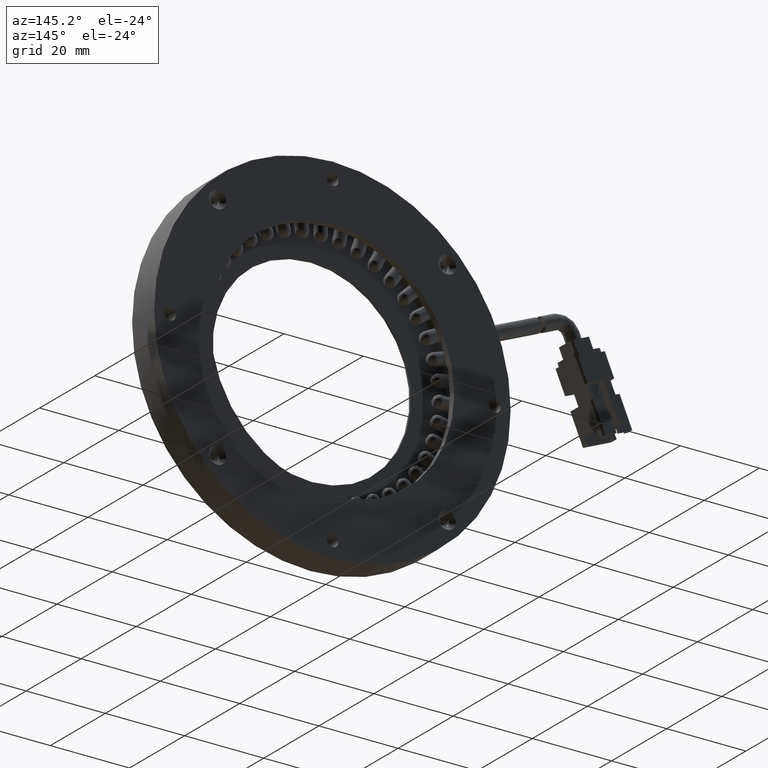
[diagram: clean part render]
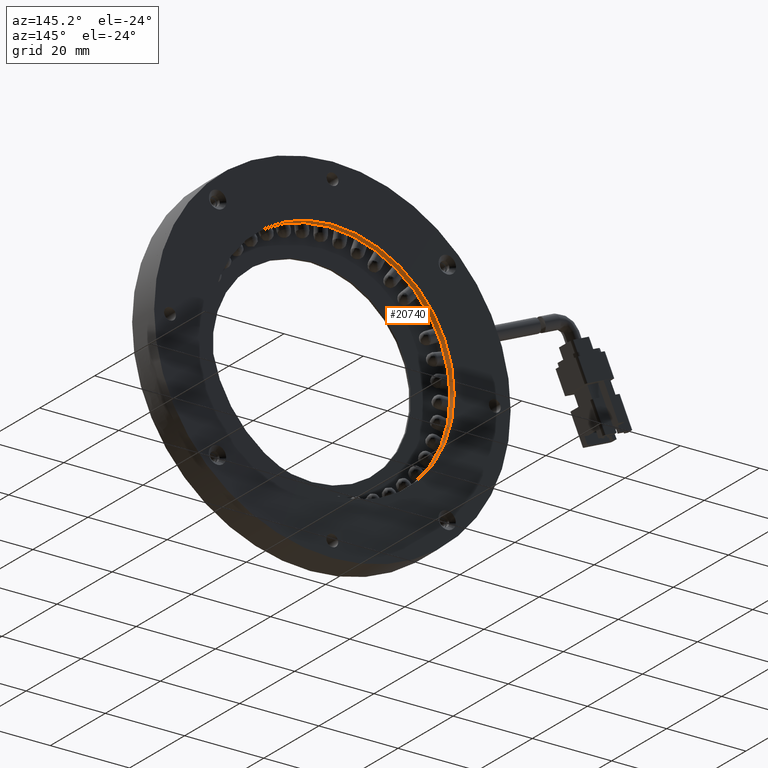
[diagram: same view with one face highlighted and labeled with its STEP entity id]
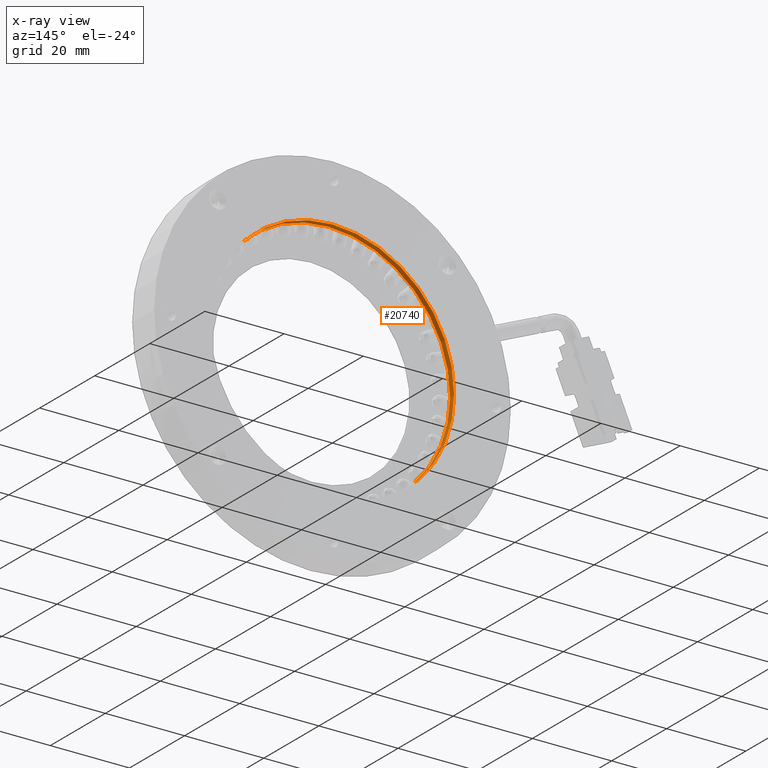
[diagram: x-ray of the same camera — body ghosted, the highlighted face saturated]
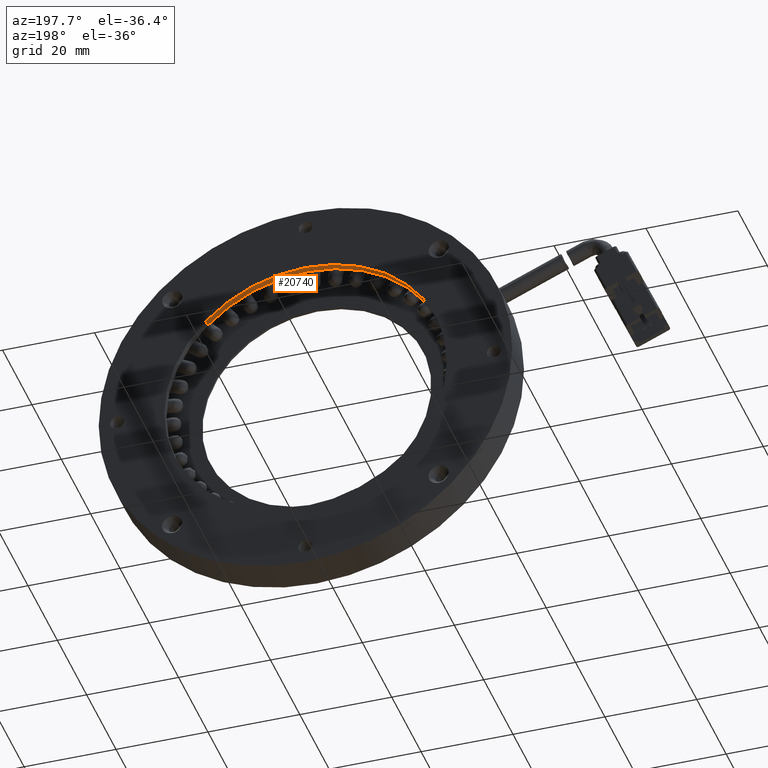
[diagram: same view with one face highlighted and labeled with its STEP entity id]
A machine part, auxiliary view. The second image highlights one B-rep face of the part: STEP entity #20740.
The next image is the same camera in x-ray: the body ghosted, the highlighted face saturated — about 0% of this face is hidden behind the body in this view.
A second angle (auxiliary view) of the same face is appended — the face is thin or edge-on in the first view.
In plain terms, the highlighted cylindrical surface (partial cylindrical patch) has radius 30.74 mm, axis along (-0, 1, -0).
Its self-contained STEP definition (entity closure, byte-faithful):
#408 = VERTEX_POINT ( 'NONE', #24577 ) ;
#1778 = FACE_OUTER_BOUND ( 'NONE', #18301, .T. ) ;
#2072 = EDGE_CURVE ( 'NONE', #27943, #31389, #22840, .T. ) ;
#3883 = EDGE_CURVE ( 'NONE', #38177, #408, #15187, .T. ) ;
#6061 = CARTESIAN_POINT ( 'NONE',  ( 25.28996387029088000, 6.123552123552125100, 21.75437483523881700 ) ) ;
#11577 = CARTESIAN_POINT ( 'NONE',  ( 3.571428571428565800, 7.623552123552121500, 0.0000000000000000000 ) ) ;
#12625 = ORIENTED_EDGE ( 'NONE', *, *, #35789, .T. ) ;
#12877 = CARTESIAN_POINT ( 'NONE',  ( -18.14710672743374400, 7.623552123552118000, -21.75437483523882100 ) ) ;
#14558 = CYLINDRICAL_SURFACE ( 'NONE', #30727, 30.74000000000000200 ) ;
#14762 = DIRECTION ( 'NONE',  ( 0.7065235946279216900, 1.128642469731169200E-016, 0.7076894871580616800 ) ) ;
#15132 = CARTESIAN_POINT ( 'NONE',  ( 3.571428571428565800, 6.123552123552121500, 0.0000000000000000000 ) ) ;
#15187 = LINE ( 'NONE', #23214, #39307 ) ;
#18301 = EDGE_LOOP ( 'NONE', ( #40769, #34462, #12625, #38337 ) ) ;
#18307 = DIRECTION ( 'NONE',  ( 0.7065235946279216900, 1.128642469731169200E-016, 0.7076894871580616800 ) ) ;
#20054 = AXIS2_PLACEMENT_3D ( 'NONE', #11577, #33630, #14762 ) ;
#20740 = ADVANCED_FACE ( 'NONE', ( #1778 ), #14558, .F. ) ;
#20943 = DIRECTION ( 'NONE',  ( -1.163897087407499700E-016, 1.000000000000000000, -2.939373556709199600E-017 ) ) ;
#21908 = CIRCLE ( 'NONE', #38463, 30.74000000000000200 ) ;
#22840 = LINE ( 'NONE', #12877, #31239 ) ;
#23214 = CARTESIAN_POINT ( 'NONE',  ( 25.28996387029088000, 7.623552123552125100, 21.75437483523881700 ) ) ;
#24577 = CARTESIAN_POINT ( 'NONE',  ( 25.28996387029088000, 7.623552123552125100, 21.75437483523881700 ) ) ;
#24975 = DIRECTION ( 'NONE',  ( -1.163897087407499700E-016, 1.000000000000000000, -2.939373556709199600E-017 ) ) ;
#27113 = CARTESIAN_POINT ( 'NONE',  ( -18.14710672743374400, 7.623552123552118000, -21.75437483523882100 ) ) ;
#27408 = EDGE_CURVE ( 'NONE', #27943, #38177, #21908, .T. ) ;
#27943 = VERTEX_POINT ( 'NONE', #33551 ) ;
#29432 = CIRCLE ( 'NONE', #20054, 30.74000000000000200 ) ;
#30727 = AXIS2_PLACEMENT_3D ( 'NONE', #36615, #20943, #33605 ) ;
#31239 = VECTOR ( 'NONE', #32321, 1000.000000000000000 ) ;
#31389 = VERTEX_POINT ( 'NONE', #27113 ) ;
#32321 = DIRECTION ( 'NONE',  ( -1.163897087407499700E-016, 1.000000000000000000, -2.939373556709199600E-017 ) ) ;
#33551 = CARTESIAN_POINT ( 'NONE',  ( -18.14710672743374400, 6.123552123552118000, -21.75437483523882100 ) ) ;
#33605 = DIRECTION ( 'NONE',  ( 0.7065235946279216900, 1.128642469731169200E-016, 0.7076894871580616800 ) ) ;
#33630 = DIRECTION ( 'NONE',  ( -1.163897087407499700E-016, 1.000000000000000000, -2.939373556709199600E-017 ) ) ;
#34462 = ORIENTED_EDGE ( 'NONE', *, *, #2072, .T. ) ;
#35789 = EDGE_CURVE ( 'NONE', #31389, #408, #29432, .T. ) ;
#36615 = CARTESIAN_POINT ( 'NONE',  ( 3.571428571428565800, 7.623552123552121500, 0.0000000000000000000 ) ) ;
#37151 = DIRECTION ( 'NONE',  ( -1.163897087407499700E-016, 1.000000000000000000, -2.939373556709199600E-017 ) ) ;
#38177 = VERTEX_POINT ( 'NONE', #6061 ) ;
#38337 = ORIENTED_EDGE ( 'NONE', *, *, #3883, .F. ) ;
#38463 = AXIS2_PLACEMENT_3D ( 'NONE', #15132, #37151, #18307 ) ;
#39307 = VECTOR ( 'NONE', #24975, 1000.000000000000000 ) ;
#40769 = ORIENTED_EDGE ( 'NONE', *, *, #27408, .F. ) ;